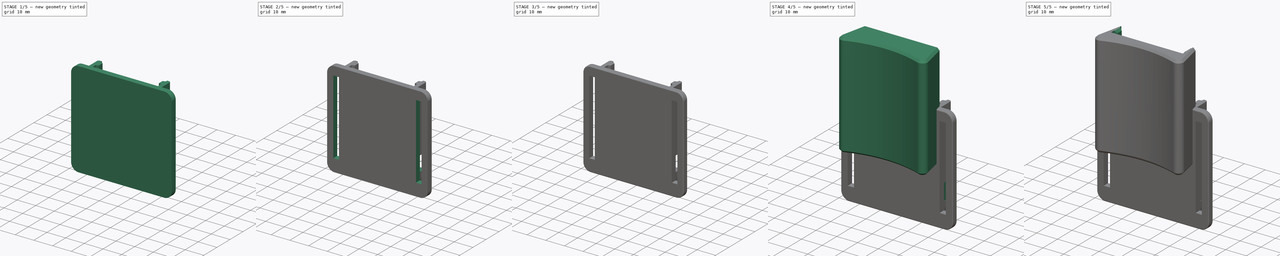
[diagram: build sequence overview — one tinted view per stage of 5, left to right]
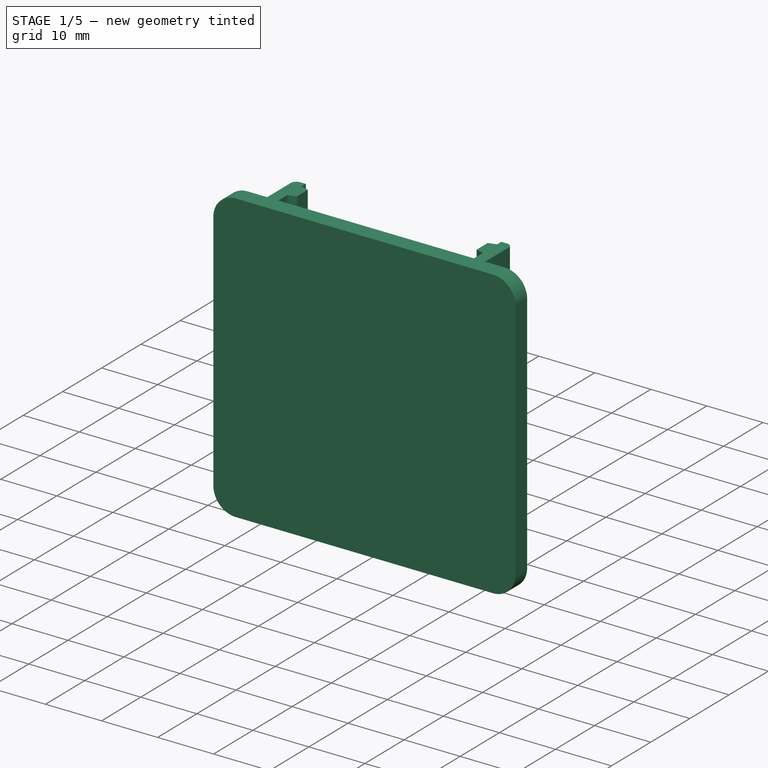
[diagram: stage 1 of 5 — iso view after this stage's code; geometry added in this stage tinted green]
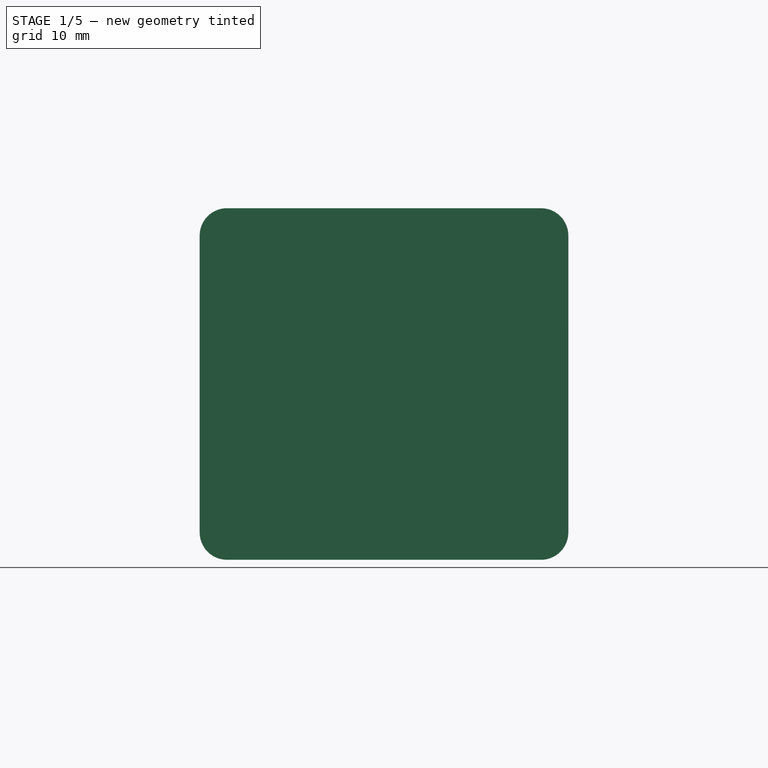
[diagram: stage 1 of 5 — front view after this stage's code; geometry added in this stage tinted green]
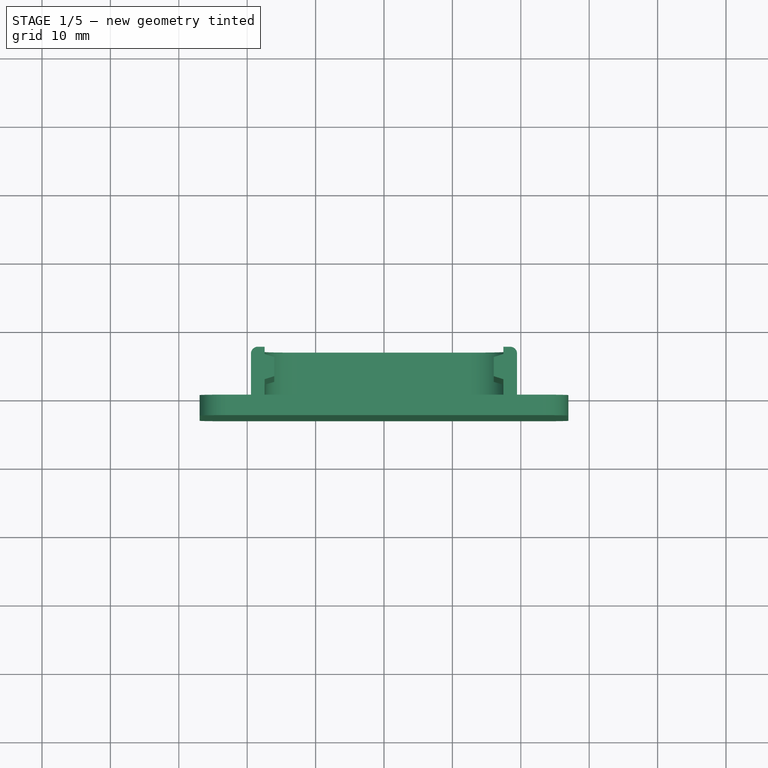
[diagram: stage 1 of 5 — top view after this stage's code; geometry added in this stage tinted green]
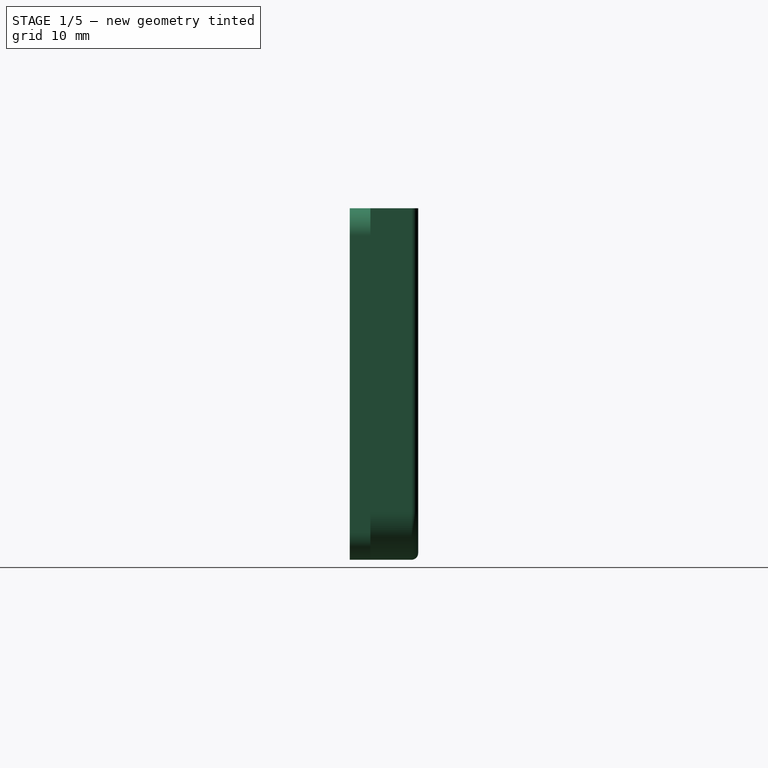
[diagram: stage 1 of 5 — right view after this stage's code; geometry added in this stage tinted green]
FCSTD DOCUMENT  (FreeCAD 1.0R39319 (Git))
Label: M1 Mounting
License: All rights reserved
objects: Sketcher::SketchObject×15, PartDesign::Pad×9, PartDesign::Fillet×7, PartDesign::Pocket×6, PartDesign::Chamfer×5, PartDesign::Mirrored×5, PartDesign::Body×3, PartDesign::Plane×1, App::Link×1, Spreadsheet::Sheet×1, PartDesign::SubShapeBinder×1
note: 126 computed .brp shape members not serialized (recipe doc carries the construction recipe); baked Part::Feature solids carry a one-line shape summary decoded from their .brp

FEATURE [PartDesign::Body] Body  label="Test Mount 1"
  AllowCompound = false
  Group = -> [Sketch,Pad,DatumPlane,Fillet,Chamfer,Sketch001,Pocket,Sketch002,Pad001,Chamfer001,Chamfer002,Fillet001,Mirrored]
  Origin = -> Origin
  Tip = -> Mirrored
FEATURE [App::Link] Link001  label="Housing Spreadsheet Binder"
  LinkedObject = -> Spreadsheet
FEATURE [Spreadsheet::Sheet] Spreadsheet  label="Housing Spreadsheet"
  cells = B1='Measurements; C1='Tolerance; D1='Output; G1='Measurements; H1='Tolerance; I1='Output; A2='Lower Housing Base; F2='Multi-Button; A3='PCB Length; B3==43 mm; C3==0 mm; D3(pcbLength)==B3 + C3; F3='Multi-Button Fillet; G3==1 mm; H3==0 mm; I3(multiButtonFillet)==G3 + H3; A4='PCB Width; B4==28.5 mm; C4==0 mm; D4(pcbWidth)==B4 + C4; F4='Multi-Button Length; G4==3 mm; H4==-0.25 mm; I4(multiButtonLength)==G4 + H4; A5='Base Offset; B5==3 mm; C5==0 mm; D5(baseGeoOffset)==B5 + C5; F5='Multi-Button Width; G5==10 mm; H5==-0.25 mm; I5(multiButtonWidth)==G5 + H5; A6='Base Geometry Pad Thickness; B6==20 mm; C6==0 mm; D6(baseGeoPadThickness)==B6 + C6; F6='Multi-Button Height; G6==4 mm; H6==-0.25 mm; I6(multiButtonHeight)==G6 + H6; A7='Board Pocket Offset; B7==0.3 mm; C7==0 mm; D7(boardPocketOffset)==B7 + C7; F7='Multi-Button Outer Chamfer; G7==0.25 mm; H7==0 mm; I7(multiButtonChamfer)==G7 + H7; A8='Board Pocket Depth; B8==10.5 mm; C8==0 mm; D8(boardPocketDepth)==B8 + C8; F8='Multi-Button Base Offset; G8==1.5 mm; H8==-0.25 mm; I8(multiButtonBaseOffset)==G8 + H8; A9='Board Pocket Screw Side Fillets; B9==2 mm; C9==0 mm; D9(boardPocketScrewSideFillets)==B9 + C9; F9='Multi-Button Base Length; G9==1.75 mm; H9==-0.25 mm; I9(multiButtonBaseLength)==G9 + H9; A10='Board Pocket Port Side Fillets; B10==2 mm; C10==0 mm; D10(boardPocketPortSideFillets)==B10 + C10; F10='Multi-Button Base Contact Fillet; G10==0.5 mm; H10==0 mm; I10(multiButtonBaseContactFillet)==G10 + H10; A11='Battery Pocket Length; B11==36 mm; C11==0 mm; D11(batteryPocketLength)==B11 + C11; A12='Battery Pocket Port Side Ledge; B12==2 mm; C12==0 mm; D12(batteryPocketLedge)==B12 + C12; A13='Battery Pocket Depth; B13==8 mm; C13==0 mm; D13(batteryPocketDepth)==B13 + C13; A14='Outer Corner Fillets; B14==5 mm; C14==0 mm; D14(baseGeoOuterCornerFillets)==B14 + C14; A16='Screw Square Length; B16==3 mm; C16==0 mm; D16(screwholeSquareLength)==B16 + C16; A17='Screw Hole Diameter; B17==1.6 mm; C17==0 mm; D17(screwholeDiameter)==B17 + C17; A18='Screw Hole Depth; B18==4 mm; C18==0 mm; D18(screwholeDepth)==B18 + C18; A19='Mounting; A20='Mounting Slot Offset; B20==2 mm; C20==0 mm; D20(mountingSlotOffset)==B20 + C20; A21='Mounting Slot Inner Width; B21==3 mm; C21==0 mm; D21(mountingSlotInnerWidth)==B21 + C21; A22='Mounting Slot Outer Width; B22==4 mm; C22==0 mm; D22(mountingSlotOuterWidth)==B22 + C22; A23='Mounting Slot Depth; B23==1.25 mm; C23==0 mm; D23(mountingSlotDepth)==B23 + C23; A24='Mounting Slot End Fillet; B24==1 mm; C24==0 mm; D24(mountingSlotEndFillet)==B24 + C24; A25='Mounting Slot Lock Width; B25==5 mm; C25==0 mm; D25(mountingSlotLockWidth)==B25 + C25; A26='Mounting Slot Lock Pitch; B26==20 mm; C26==0 mm; D26(mountingSlotLockPitch)==B26 + C26; A27='Mounting Slot Lock Depth; B27==0.5 mm; C27==0 mm; D27(mountingSlotLockDepth)==B27 + C27; A28='Mounting Slot Lock Taper Angle; B28=-25; C28=0; D28(mountingSlotLockTaperAngle)==B28 + C28; A29='Mounting Clip Offset; B29==13 mm; C29==0 mm; D29(mountingClipOffset)==B29 + C29; A30='Mounting Clip Width; B30==15 mm; C30==0 mm; D30(mountingClipWidth)==B30 + C30; A31='Mounting Clip Height; B31==5 mm; C31==0 mm; D31(mountingClipHeight)==B31 + C31; A32='Mounting Clip Depth; B32==1.5 mm; C32==0 mm; D32(mountingClipDepth)==B32 + C32
FEATURE [Sketcher::SketchObject] Sketch003  label="Base Reference Sketch"
  ArcFitTolerance = 1e-06
  AttachmentSupport = -> [XZ_Plane001]
  FullyConstrained = true
  MakeInternals = false
  MapMode = 5
  Placement = pos=(0,0,0) rot=(1,0,0;1.5708rad)
  expr: Constraints[10] = <<Housing Spreadsheet>>.pcbLength + 2 * <<Housing Spreadsheet>>.baseGeoOffset + 0.4 mm
  expr: Constraints[9] = <<Housing Spreadsheet>>.pcbWidth + 2 * <<Housing Spreadsheet>>.baseGeoOffset + 0.4 mm
  sketch-geometry (5):
    g0: LineSegment StartX=-17.45 StartY=-24.7 StartZ=0 EndX=17.45 EndY=-24.7 EndZ=0
    g1: LineSegment StartX=17.45 StartY=-24.7 StartZ=0 EndX=17.45 EndY=24.7 EndZ=0
    g2: LineSegment StartX=17.45 StartY=24.7 StartZ=0 EndX=-17.45 EndY=24.7 EndZ=0
    g3: LineSegment StartX=-17.45 StartY=24.7 StartZ=0 EndX=-17.45 EndY=-24.7 EndZ=0
    g4: GeomPoint [constr] X=0 Y=0 Z=0
  constraints (13):
    c: Coincident(g0,g1)
    c: Coincident(g1,g2)
    c: Coincident(g2,g3)
    c: Coincident(g3,g0)
    c: Horizontal(g0)
    c: Horizontal(g2)
    c: Vertical(g1)
    c: Vertical(g3)
    c: Symmetric(g2,g0,g4)
    c: DistanceX(g2,g2) = 34.9
    c: DistanceY(g1,g1) = 49.4
    c: PointOnObject(g4,g-2)
    c: PointOnObject(g4,g-1)
FEATURE [Sketcher::SketchObject] Sketch004  label="Offset Sketch"
  ArcFitTolerance = 1e-06
  AttachmentSupport = -> [XZ_Plane001]
  ExternalGeometry = -> [Sketch003]
  FullyConstrained = false
  MakeInternals = false
  MapMode = 5
  Placement = pos=(0,0,0) rot=(1,0,0;1.5708rad)
  expr: Constraints[17] = <<Housing Spreadsheet>>.baseGeoOuterCornerFillets
  sketch-geometry (20):
    g0: LineSegment StartX=-17.45 StartY=24.7 StartZ=0 EndX=-17.45 EndY=-19.7 EndZ=0
    g1: LineSegment StartX=-12.45 StartY=-24.7 StartZ=0 EndX=12.45 EndY=-24.7 EndZ=0
    g2: LineSegment StartX=17.45 StartY=-19.7 StartZ=0 EndX=17.45 EndY=24.7 EndZ=0
    g3: LineSegment [constr] StartX=17.45 StartY=24.7 StartZ=0 EndX=-17.45 EndY=24.7 EndZ=0
    g4: ArcOfCircle CenterX=-12.45 CenterY=-19.7 CenterZ=0 NormalX=0 NormalY=0 NormalZ=1 AngleXU=0 Radius=5 StartAngle=3.14159 EndAngle=4.71239
    g5: GeomPoint [constr] X=-17.45 Y=-24.7 Z=0
    g6: ArcOfCircle CenterX=12.45 CenterY=-19.7 CenterZ=0 NormalX=0 NormalY=0 NormalZ=1 AngleXU=0 Radius=5 StartAngle=4.71239 EndAngle=6.28319
    g7: GeomPoint [constr] X=17.45 Y=-24.7 Z=0
    g8: ArcOfCircle CenterX=12.45 CenterY=-19.7 CenterZ=0 NormalX=0 NormalY=0 NormalZ=1 AngleXU=0 Radius=7 StartAngle=4.71239 EndAngle=6.28319
    g9: LineSegment [constr] StartX=19.45 StartY=-19.7 StartZ=0 EndX=19.45 EndY=26.7 EndZ=0
    g10: LineSegment [constr] StartX=19.45 StartY=26.7 StartZ=0 EndX=-19.45 EndY=26.7 EndZ=0
    g11: LineSegment [constr] StartX=-19.45 StartY=26.7 StartZ=0 EndX=-19.45 EndY=-19.7 EndZ=0
    g12: ArcOfCircle CenterX=-12.45 CenterY=-19.7 CenterZ=0 NormalX=0 NormalY=0 NormalZ=1 AngleXU=0 Radius=7 StartAngle=3.14159 EndAngle=4.71239
    g13: LineSegment StartX=-12.45 StartY=-26.7 StartZ=0 EndX=12.45 EndY=-26.7 EndZ=0
    g14: LineSegment [constr] StartX=22.9053 StartY=26.7 StartZ=0 EndX=22.9053 EndY=24.7 EndZ=0
    g15: LineSegment [constr] StartX=-19.45 StartY=30.1554 StartZ=0 EndX=-17.45 EndY=30.1554 EndZ=0
    g16: LineSegment StartX=-17.45 StartY=24.7 StartZ=0 EndX=-19.45 EndY=24.7 EndZ=0
    g17: LineSegment StartX=17.45 StartY=24.7 StartZ=0 EndX=19.45 EndY=24.7 EndZ=0
    g18: LineSegment StartX=-19.45 StartY=24.7 StartZ=0 EndX=-19.45 EndY=-19.7 EndZ=0
    g19: LineSegment StartX=19.45 StartY=24.7 StartZ=0 EndX=19.45 EndY=-19.7 EndZ=0
  constraints (48):
    c: Coincident(g2,g3)
    c: Coincident(g3,g0)
    c: Vertical(g0)
    c: Vertical(g2)
    c: Horizontal(g1)
    c: Horizontal(g3)
    c: Coincident(g0,g-3)
    c: Coincident(g7,g-4)
    c: PointOnObject(g5,g0)
    c: PointOnObject(g5,g1)
    c: Tangent(g0,g4) = -1.5708
    c: Tangent(g1,g4) = -1.5708
    c: PointOnObject(g7,g1)
    c: PointOnObject(g7,g2)
    c: Tangent(g1,g6) = -1.5708
    c: Tangent(g2,g6) = -1.5708
    c: Equal(g6,g4)
    c: Radius(g4) = 5
    c: Tangent(g8,g9) = -1.5708
    c: Tangent(g8,g13) = -1.5708
    c: Coincident(g9,g10)
    c: Coincident(g10,g11)
    c: Tangent(g11,g12) = -1.5708
    c: Tangent(g12,g13) = -1.5708
    c: Perpendicular(g14,g10)
    c: PointOnObject(g14,g10)
    c: PointOnObject(g14,g3)
    c: Perpendicular(g15,g11)
    c: PointOnObject(g15,g11)
    c: PointOnObject(g15,g0)
    c: Parallel(g13,g1)
    c: Coincident(g8,g6)
    c: Parallel(g9,g2)
    c: Parallel(g10,g3)
    c: Parallel(g11,g0)
    c: Equal(g15,g14)
    c: Coincident(g12,g4)
    c: Distance(g14) = 2
    c: Coincident(g16,g0)
    c: PointOnObject(g16,g11)
    c: Horizontal(g16)
    c: Coincident(g17,g2)
    c: PointOnObject(g17,g9)
    c: Horizontal(g17)
    c: Coincident(g18,g16)
    c: Coincident(g18,g11)
    c: Coincident(g19,g17)
    c: Tangent(g19,g8) = 1.5708
FEATURE [PartDesign::Pad] Pad002  label="Mounting Walls"
  Direction = (0,-1,2e-16)
  Length = 7
  Length2 = 10
  Placement = pos=(0,0,0) rot=(1,0,0;1.5708rad)
  Profile = -> Sketch004
  ReferenceAxis = -> Sketch004 [N_Axis]
  Refine = true
  Reversed = true
  Suppressed = false
  Type = 0
FEATURE [Sketcher::SketchObject] Sketch005
  ArcFitTolerance = 1e-06
  AttachmentSupport = -> [XZ_Plane001]
  ExternalGeometry = -> [Sketch004]
  FullyConstrained = true
  MakeInternals = false
  MapMode = 5
  Placement = pos=(0,0,0) rot=(1,0,0;1.5708rad)
  sketch-geometry (5):
    g0: LineSegment StartX=-26.95 StartY=-26.7 StartZ=0 EndX=26.95 EndY=-26.7 EndZ=0
    g1: LineSegment StartX=26.95 StartY=-26.7 StartZ=0 EndX=26.95 EndY=24.7 EndZ=0
    g2: LineSegment StartX=26.95 StartY=24.7 StartZ=0 EndX=-26.95 EndY=24.7 EndZ=0
    g3: LineSegment StartX=-26.95 StartY=24.7 StartZ=0 EndX=-26.95 EndY=-26.7 EndZ=0
    g4: GeomPoint [constr] X=0 Y=-1 Z=0
  constraints (13):
    c: Coincident(g0,g1)
    c: Coincident(g1,g2)
    c: Coincident(g2,g3)
    c: Coincident(g3,g0)
    c: Horizontal(g0)
    c: Horizontal(g2)
    c: Vertical(g1)
    c: Vertical(g3)
    c: Symmetric(g2,g0,g4)
    c: PointOnObject(g4,g-2)
    c: PointOnObject(g-4,g2)
    c: PointOnObject(g-5,g0)
    c: Distance(g1,g-4) = 7.5
FEATURE [PartDesign::Pad] Pad003
  BaseFeature = -> Pad002
  Direction = (0,-1,2e-16)
  Length = 3
  Length2 = 10
  Placement = pos=(0,0,0) rot=(1,0,0;1.5708rad)
  Profile = -> Sketch005
  ReferenceAxis = -> Sketch005 [N_Axis]
  Refine = true
  Suppressed = false
  Type = 0
FEATURE [PartDesign::Fillet] Fillet002
  Base = -> Pad003 [Edge1,Edge2,Edge44,Edge45]
  BaseFeature = -> Pad003
  Placement = pos=(0,0,0) rot=(1,0,0;1.5708rad)
  Radius = 4
  Refine = true
  SupportTransform = false
  Suppressed = false
  UseAllEdges = false
FEATURE [Sketcher::SketchObject] Sketch006
  ArcFitTolerance = 1e-06
  AttachmentSupport = -> [Fillet002]
  ExternalGeometry = -> [Fillet002]
  FullyConstrained = true
  MakeInternals = false
  MapMode = 5
  Placement = pos=(0,1.15e-14,24.7) rot=(0,0,1;3.14159rad)
  expr: Constraints[11] = <<Housing Spreadsheet>>.mountingSlotOffset + 0.25 mm
  expr: Constraints[6] = <<Housing Spreadsheet>>.mountingSlotInnerWidth - 0.2 mm
  expr: Constraints[7] = <<Housing Spreadsheet>>.mountingSlotOuterWidth - 0.3 mm
  expr: Constraints[8] = <<Housing Spreadsheet>>.mountingSlotDepth + 0.15 mm
  sketch-geometry (4):
    g0: LineSegment StartX=-17.45 StartY=-2.25 StartZ=0 EndX=-17.45 EndY=-5.95 EndZ=0
    g1: LineSegment StartX=-17.45 StartY=-5.95 StartZ=0 EndX=-16.05 EndY=-5.5 EndZ=0
    g2: LineSegment StartX=-17.45 StartY=-2.25 StartZ=0 EndX=-16.05 EndY=-2.7 EndZ=0
    g3: LineSegment StartX=-16.05 StartY=-2.7 StartZ=0 EndX=-16.05 EndY=-5.5 EndZ=0
  constraints (12):
    c: Coincident(g1,g0)
    c: Coincident(g2,g0)
    c: Equal(g1,g2)
    c: Coincident(g3,g2)
    c: Vertical(g3)
    c: Coincident(g3,g1)
    c: DistanceY(g3,g3) = 2.8
    c: DistanceY(g0,g0) = 3.7
    c: Distance(g3,g0) = 1.4
    c: PointOnObject(g0,g-4)
    c: PointOnObject(g0,g-4)
    c: Distance(g0,g-3) = 2.25
FEATURE [PartDesign::Pad] Pad004  label="Mounting Rail"
  BaseFeature = -> Fillet002
  Direction = (0,0,1)
  Length = 10
  Length2 = 10
  Placement = pos=(0,0,0) rot=(1,0,0;1.5708rad)
  Profile = -> Sketch006
  ReferenceAxis = -> Sketch006 [N_Axis]
  Refine = true
  Reversed = true
  Suppressed = false
  Type = 2
FEATURE [PartDesign::Mirrored] Mirrored001  label="Mounting Rail Mirror001"
  BaseFeature = -> Pad004
  MirrorPlane = -> YZ_Plane001
  Originals = -> [Pad004]
  Placement = pos=(0,0,0) rot=(1,0,0;1.5708rad)
  Refine = true
  Suppressed = false
  TransformMode = 0
FEATURE [PartDesign::Fillet] Fillet003
  Base = -> Mirrored001 [Edge42]
  BaseFeature = -> Mirrored001
  Placement = pos=(0,0,0) rot=(1,0,0;1.5708rad)
  Radius = 1
  Refine = true
  SupportTransform = false
  Suppressed = false
  UseAllEdges = false
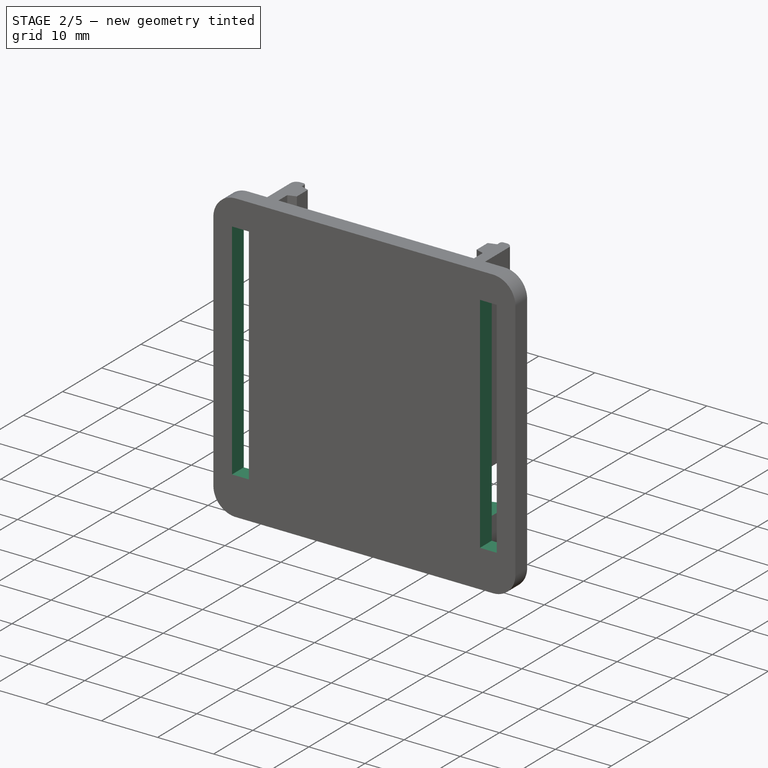
[diagram: stage 2 of 5 — iso view after this stage's code; geometry added in this stage tinted green]
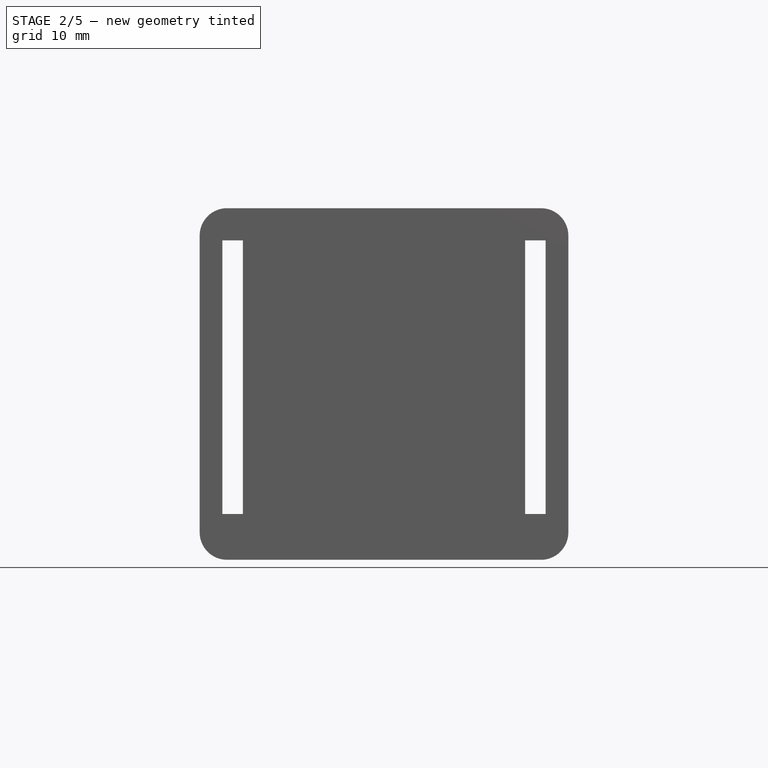
[diagram: stage 2 of 5 — front view after this stage's code; geometry added in this stage tinted green]
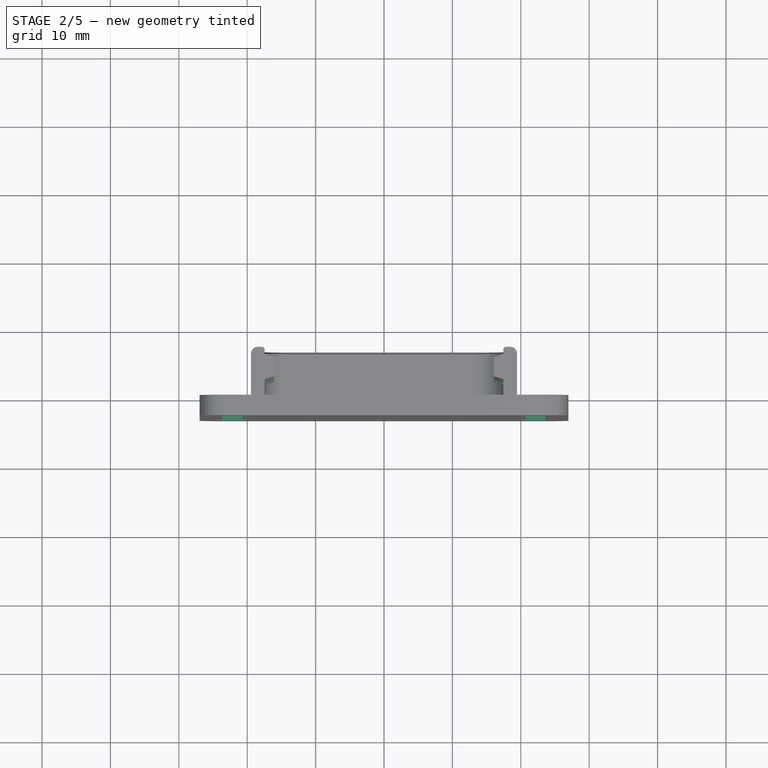
[diagram: stage 2 of 5 — top view after this stage's code; geometry added in this stage tinted green]
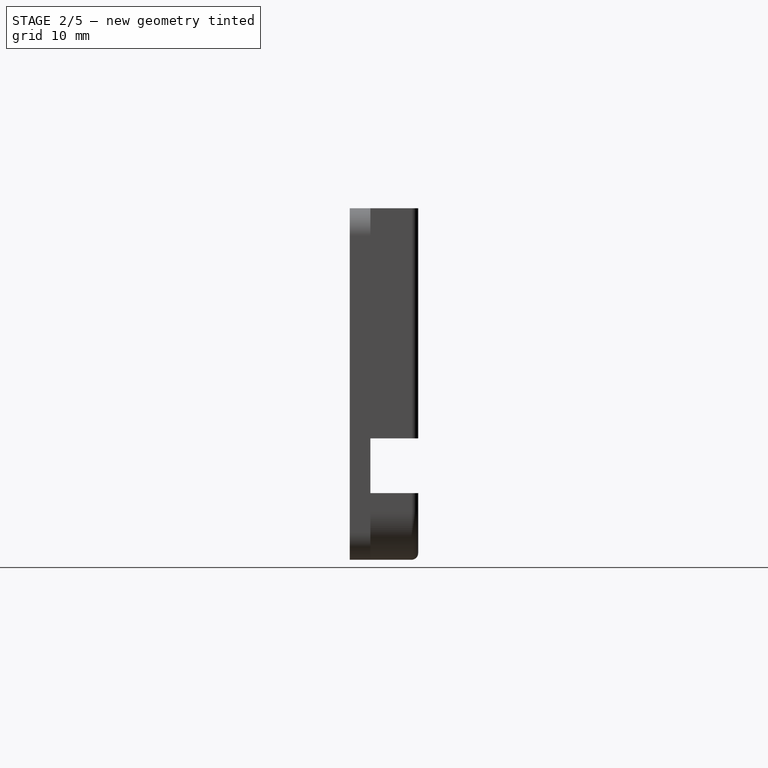
[diagram: stage 2 of 5 — right view after this stage's code; geometry added in this stage tinted green]
FEATURE [PartDesign::Chamfer] Chamfer003
  Angle = 45
  Base = -> Fillet003 [Edge45]
  BaseFeature = -> Fillet003
  ChamferType = 0
  FlipDirection = false
  Placement = pos=(0,0,0) rot=(1,0,0;1.5708rad)
  Refine = true
  Size = 0.25
  Size2 = 1
  SupportTransform = false
  Suppressed = false
  UseAllEdges = false
FEATURE [Sketcher::SketchObject] Sketch007
  ArcFitTolerance = 1e-06
  AttachmentSupport = -> [XZ_Plane001]
  FullyConstrained = true
  MakeInternals = false
  MapMode = 5
  Placement = pos=(0,0,0) rot=(1,0,0;1.5708rad)
  sketch-geometry (6):
    g0: LineSegment [constr] StartX=-24.625 StartY=-3e-16 StartZ=0 EndX=-19.625 EndY=-3e-16 EndZ=0
    g1: LineSegment StartX=-20.625 StartY=-20 StartZ=0 EndX=-20.625 EndY=20 EndZ=0
    g2: LineSegment StartX=-20.625 StartY=20 StartZ=0 EndX=-23.625 EndY=20 EndZ=0
    g3: LineSegment StartX=-23.625 StartY=20 StartZ=0 EndX=-23.625 EndY=-20 EndZ=0
    g4: LineSegment StartX=-23.625 StartY=-20 StartZ=0 EndX=-20.625 EndY=-20 EndZ=0
    g5: GeomPoint [constr] X=-22.125 Y=-3e-16 Z=0
  constraints (16):
    c: Symmetric(g-3,g-3,g0)
    c: PointOnObject(g0,g-4)
    c: Horizontal(g0)
    c: Coincident(g1,g2)
    c: Coincident(g2,g3)
    c: Coincident(g3,g4)
    c: Coincident(g4,g1)
    c: Vertical(g1)
    c: Vertical(g3)
    c: Horizontal(g2)
    c: Horizontal(g4)
    c: Symmetric(g3,g1,g5)
    c: Distance(g2,g2) = 3
    c: DistanceY(g3,g3) = 40
    c: PointOnObject(g5,g0)
    c: Distance(g-4,g1) = 1
FEATURE [PartDesign::Pocket] Pocket001  label="Strap Pocket"
  BaseFeature = -> Chamfer003
  Direction = (0,1,-2e-16)
  Length = 5
  Length2 = 5
  Placement = pos=(0,0,0) rot=(1,0,0;1.5708rad)
  Profile = -> Sketch007
  ReferenceAxis = -> Sketch007 [N_Axis]
  Refine = true
  Reversed = true
  Suppressed = false
  Type = 1
FEATURE [PartDesign::Mirrored] Mirrored002  label="Strap Pocket Mirror"
  BaseFeature = -> Pocket001
  MirrorPlane = -> YZ_Plane001
  Originals = -> [Pocket001]
  Placement = pos=(0,0,0) rot=(1,0,0;1.5708rad)
  Refine = true
  Suppressed = false
  TransformMode = 0
FEATURE [Sketcher::SketchObject] Sketch008
  ArcFitTolerance = 1e-06
  AttachmentSupport = -> [XZ_Plane001]
  ExternalGeometry = -> [Sketch004]
  FullyConstrained = true
  MakeInternals = false
  MapMode = 5
  Placement = pos=(0,0,0) rot=(1,0,0;1.5708rad)
  sketch-geometry (4):
    g0: LineSegment StartX=19.45 StartY=-8.95 StartZ=0 EndX=-19.45 EndY=-8.95 EndZ=0
    g1: LineSegment StartX=-19.45 StartY=-8.95 StartZ=0 EndX=-19.45 EndY=-16.95 EndZ=0
    g2: LineSegment StartX=-19.45 StartY=-16.95 StartZ=0 EndX=19.45 EndY=-16.95 EndZ=0
    g3: LineSegment StartX=19.45 StartY=-16.95 StartZ=0 EndX=19.45 EndY=-8.95 EndZ=0
  constraints (12):
    c: Coincident(g0,g1)
    c: Coincident(g1,g2)
    c: Coincident(g2,g3)
    c: Coincident(g3,g0)
    c: Horizontal(g0)
    c: Horizontal(g2)
    c: Vertical(g1)
    c: Vertical(g3)
    c: Distance(g0,g2) = 8
    c: PointOnObject(g0,g-3)
    c: PointOnObject(g0,g-4)
    c: Distance(g2,g-4) = 2.75
FEATURE [PartDesign::Pocket] Pocket002  label="Locking Tab Pocket "
  BaseFeature = -> Mirrored002
  Direction = (0,1,-2e-16)
  Length = 5
  Length2 = 5
  Placement = pos=(0,0,0) rot=(1,0,0;1.5708rad)
  Profile = -> Sketch008
  ReferenceAxis = -> Sketch008 [N_Axis]
  Refine = true
  Suppressed = false
  Type = 1
FEATURE [Sketcher::SketchObject] Sketch009
  ArcFitTolerance = 1e-06
  AttachmentSupport = -> [XZ_Plane001]
  ExternalGeometry = -> [Sketch008,Sketch004]
  FullyConstrained = true
  MakeInternals = false
  MapMode = 5
  Placement = pos=(0,0,0) rot=(1,0,0;1.5708rad)
  sketch-geometry (4):
    g0: LineSegment StartX=19.45 StartY=-8.95 StartZ=0 EndX=17.45 EndY=-8.95 EndZ=0
    g1: LineSegment StartX=17.45 StartY=-8.95 StartZ=0 EndX=17.45 EndY=-16.95 EndZ=0
    g2: LineSegment StartX=17.45 StartY=-16.95 StartZ=0 EndX=19.45 EndY=-16.95 EndZ=0
    g3: LineSegment StartX=19.45 StartY=-16.95 StartZ=0 EndX=19.45 EndY=-8.95 EndZ=0
  constraints (11):
    c: Coincident(g0,g1)
    c: Coincident(g1,g2)
    c: Coincident(g2,g3)
    c: Coincident(g3,g0)
    c: Horizontal(g0)
    c: Horizontal(g2)
    c: Vertical(g1)
    c: Vertical(g3)
    c: Coincident(g0,g-3)
    c: PointOnObject(g1,g-4)
    c: PointOnObject(g0,g-5)
FEATURE [PartDesign::Pocket] Pocket004
  BaseFeature = -> Pocket002
  Direction = (0,1,-2e-16)
  Length = 2.5
  Length2 = 5
  Placement = pos=(0,0,0) rot=(1,0,0;1.5708rad)
  Profile = -> Sketch008
  ReferenceAxis = -> Sketch008 [N_Axis]
  Refine = true
  Reversed = true
  Suppressed = false
  Type = 0
FEATURE [PartDesign::Pocket] Pocket003  label="Locking Tab Base Pocket"
  BaseFeature = -> Pocket004
  Direction = (0,1,-2e-16)
  Length = 2.5
  Length2 = 5
  Placement = pos=(0,0,0) rot=(1,0,0;1.5708rad)
  Profile = -> Sketch009
  ReferenceAxis = -> Sketch009 [N_Axis]
  Refine = true
  Reversed = true
  Suppressed = true
  Type = 0
FEATURE [PartDesign::Mirrored] Mirrored003  label="Locking Tab Base Mirror"
  BaseFeature = -> Pocket003
  MirrorPlane = -> YZ_Plane001
  Originals = -> [Pocket003]
  Placement = pos=(0,0,0) rot=(1,0,0;1.5708rad)
  Refine = true
  Suppressed = true
  TransformMode = 0
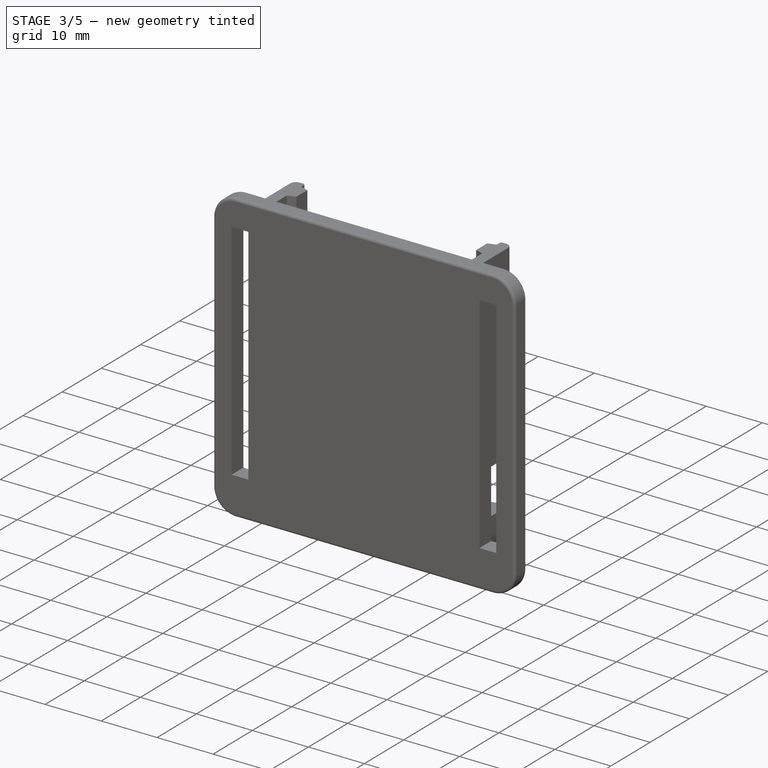
[diagram: stage 3 of 5 — iso view after this stage's code; geometry added in this stage tinted green]
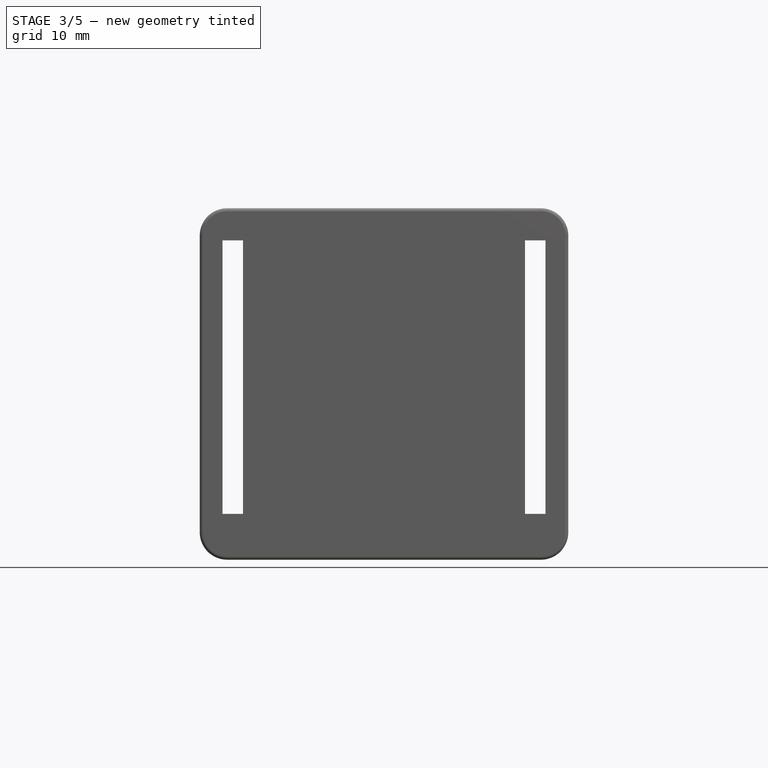
[diagram: stage 3 of 5 — front view after this stage's code; geometry added in this stage tinted green]
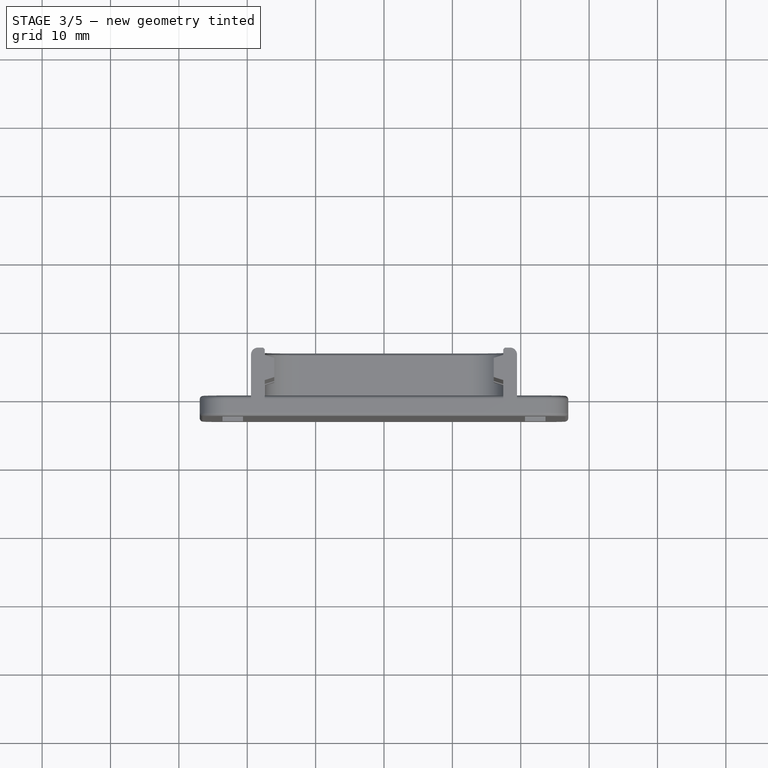
[diagram: stage 3 of 5 — top view after this stage's code; geometry added in this stage tinted green]
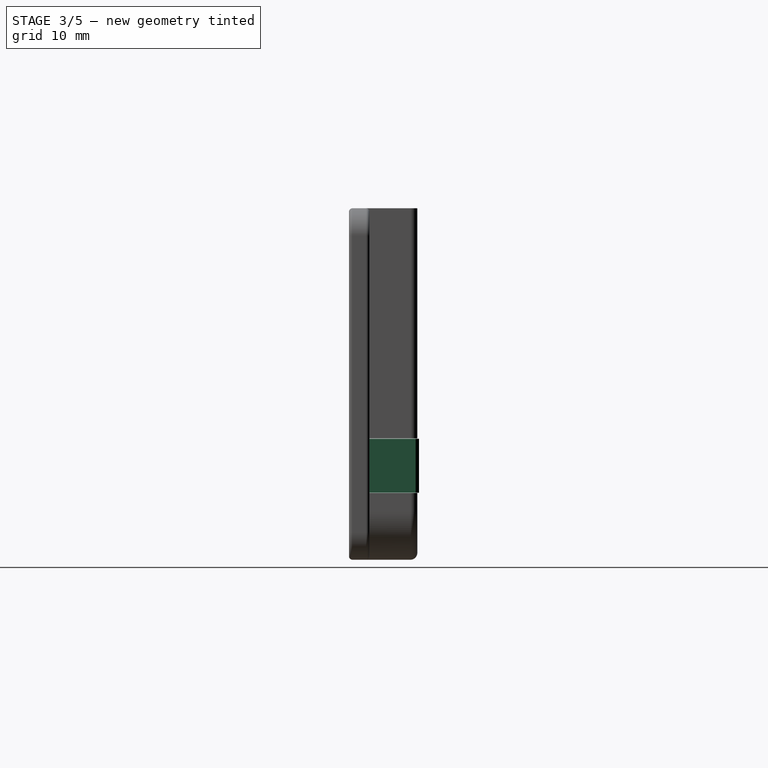
[diagram: stage 3 of 5 — right view after this stage's code; geometry added in this stage tinted green]
FEATURE [PartDesign::SubShapeBinder] Binder
  BindCopyOnChange = 0
  BindMode = 0
  ClaimChildren = false
  Context = -> Body002 [Binder.]
  Fuse = false
  MakeFace = true
  OffsetFill = false
  OffsetIntersection = false
  OffsetJoinType = 0
  OffsetOpenResult = false
  PartialLoad = false
  Refine = true
  Relative = true
  Support = -> [Body001]
  _Version = 2
FEATURE [Sketcher::SketchObject] Sketch010
  ArcFitTolerance = 1e-06
  AttachmentSupport = -> [XZ_Plane002]
  FullyConstrained = false
  MakeInternals = false
  MapMode = 5
  Placement = pos=(0,0,0) rot=(1,0,0;1.5708rad)
  sketch-geometry (12):
    g0: LineSegment [constr] StartX=18.1238 StartY=-8.95 StartZ=0 EndX=-19.45 EndY=-8.95 EndZ=0
    g1: LineSegment [constr] StartX=-19.45 StartY=-8.95 StartZ=0 EndX=-19.45 EndY=-16.95 EndZ=0
    g2: LineSegment [constr] StartX=-19.45 StartY=-16.95 StartZ=0 EndX=18.1238 EndY=-16.95 EndZ=0
    g3: LineSegment [constr] StartX=18.1238 StartY=-16.95 StartZ=0 EndX=18.1238 EndY=-8.95 EndZ=0
    g4: LineSegment StartX=18.0738 StartY=-16.9 StartZ=0 EndX=18.0738 EndY=-9 EndZ=0
    g5: LineSegment StartX=18.0738 StartY=-9 StartZ=0 EndX=-19.4 EndY=-9 EndZ=0
    g6: LineSegment StartX=-19.4 StartY=-9 StartZ=0 EndX=-19.4 EndY=-16.9 EndZ=0
    g7: LineSegment StartX=-19.4 StartY=-16.9 StartZ=0 EndX=18.0738 EndY=-16.9 EndZ=0
    g8: LineSegment [constr] StartX=18.0738 StartY=-15.547 StartZ=0 EndX=18.1238 EndY=-15.547 EndZ=0
    g9: LineSegment [constr] StartX=18.0468 StartY=-9 StartZ=0 EndX=18.0468 EndY=-8.95 EndZ=0
    g10: LineSegment [constr] StartX=-19.4 StartY=-10.3536 StartZ=0 EndX=-19.45 EndY=-10.3536 EndZ=0
    g11: LineSegment [constr] StartX=-18.0468 StartY=-16.9 StartZ=0 EndX=-18.0468 EndY=-16.95 EndZ=0
  constraints (34):
    c: Coincident(g0,g1)
    c: Coincident(g1,g2)
    c: Coincident(g2,g3)
    c: Coincident(g3,g0)
    c: Horizontal(g0)
    c: Horizontal(g2)
    c: Vertical(g1)
    c: Vertical(g3)
    c: Coincident(g1,g-5)
    c: PointOnObject(g0,g-3)
    c: Coincident(g4,g5)
    c: Coincident(g4,g7)
    c: Coincident(g5,g6)
    c: Coincident(g6,g7)
    c: Perpendicular(g8,g4)
    c: PointOnObject(g8,g4)
    c: PointOnObject(g8,g3)
    c: Perpendicular(g9,g5)
    c: PointOnObject(g9,g5)
    c: PointOnObject(g9,g0)
    c: Perpendicular(g10,g6)
    c: PointOnObject(g10,g6)
    c: PointOnObject(g10,g1)
    c: Perpendicular(g11,g7)
    c: PointOnObject(g11,g7)
    c: PointOnObject(g11,g2)
    c: Parallel(g7,g2)
    c: Parallel(g4,g3)
    c: Parallel(g5,g0)
    c: Equal(g9,g8)
    c: Parallel(g6,g1)
    c: Equal(g10,g8)
    c: Equal(g11,g8)
    c: Distance(g8) = 0.05
FEATURE [PartDesign::Pad] Pad005
  Direction = (0,-1,2e-16)
  Length = 2.25
  Length2 = 10
  Placement = pos=(0,0,0) rot=(1,0,0;1.5708rad)
  Profile = -> Sketch010
  ReferenceAxis = -> Sketch010 [N_Axis]
  Refine = true
  Suppressed = false
  Type = 0
FEATURE [Sketcher::SketchObject] Sketch011
  ArcFitTolerance = 1e-06
  AttachmentSupport = -> [XZ_Plane002]
  ExternalGeometry = -> [Pad005]
  FullyConstrained = true
  MakeInternals = false
  MapMode = 5
  Placement = pos=(0,0,0) rot=(1,0,0;1.5708rad)
  sketch-geometry (4):
    g0: LineSegment StartX=-19.4 StartY=-9 StartZ=0 EndX=-19.4 EndY=-16.9 EndZ=0
    g1: LineSegment StartX=-19.4 StartY=-16.9 StartZ=0 EndX=-17.4 EndY=-16.9 EndZ=0
    g2: LineSegment StartX=-17.4 StartY=-16.9 StartZ=0 EndX=-17.4 EndY=-9 EndZ=0
    g3: LineSegment StartX=-17.4 StartY=-9 StartZ=0 EndX=-19.4 EndY=-9 EndZ=0
  constraints (11):
    c: Coincident(g0,g1)
    c: Coincident(g1,g2)
    c: Coincident(g2,g3)
    c: Coincident(g3,g0)
    c: Vertical(g0)
    c: Vertical(g2)
    c: Horizontal(g1)
    c: Horizontal(g3)
    c: Coincident(g0,g-4)
    c: PointOnObject(g1,g-3)
    c: DistanceX(g3,g3) = 2
FEATURE [PartDesign::Pad] Pad006
  BaseFeature = -> Pad005
  Direction = (0,-1,2e-16)
  Length = 7.25
  Length2 = 10
  Placement = pos=(0,0,0) rot=(1,0,0;1.5708rad)
  Profile = -> Sketch011
  ReferenceAxis = -> Sketch011 [N_Axis]
  Refine = true
  Reversed = true
  Suppressed = false
  Type = 0
FEATURE [PartDesign::Fillet] Fillet004
  Base = -> Pad006 [Edge14]
  BaseFeature = -> Pad006
  Placement = pos=(0,0,0) rot=(1,0,0;1.5708rad)
  Radius = 1
  Refine = true
  SupportTransform = false
  Suppressed = false
  UseAllEdges = false
FEATURE [PartDesign::Chamfer] Chamfer004
  Angle = 45
  Base = -> Fillet004 [Edge3]
  BaseFeature = -> Fillet004
  ChamferType = 0
  FlipDirection = false
  Placement = pos=(0,0,0) rot=(1,0,0;1.5708rad)
  Refine = true
  Size = 0.5
  Size2 = 1
  SupportTransform = false
  Suppressed = false
  UseAllEdges = false
FEATURE [PartDesign::Body] Body002  label="Locking Tab"
  AllowCompound = false
  Group = -> [Binder,Sketch010,Pad005,Sketch011,Pad006,Fillet004,Chamfer004,Sketch012,Pad007,Sketch013,Pad008,Sketch014,Pocket005,Mirrored004]
  Origin = -> Origin002
  Tip = -> Mirrored004
FEATURE [PartDesign::Fillet] Fillet005  label="Bottom Fillets"
  Base = -> Mirrored003 [Edge128]
  BaseFeature = -> Mirrored003
  Placement = pos=(0,0,0) rot=(1,0,0;1.5708rad)
  Radius = 0.5
  Refine = true
  SupportTransform = false
  Suppressed = false
  UseAllEdges = false
FEATURE [PartDesign::Fillet] Fillet006
  Base = -> Fillet005 [Edge34,Edge18,Edge92]
  BaseFeature = -> Fillet005
  Placement = pos=(0,0,0) rot=(1,0,0;1.5708rad)
  Radius = 0.5
  Refine = true
  SupportTransform = false
  Suppressed = false
  UseAllEdges = false
FEATURE [PartDesign::Body] Body001  label="Mount 1"
  AllowCompound = false
  Group = -> [Sketch003,Sketch004,Pad002,Sketch005,Pad003,Fillet002,Sketch006,Pad004,Mirrored001,Fillet003,Chamfer003,Sketch007,Pocket001,Mirrored002,Sketch008,Pocket002,Sketch009,Pocket004,Pocket003,Mirrored003,Fillet005,Fillet006]
  Origin = -> Origin001
  Tip = -> Fillet006
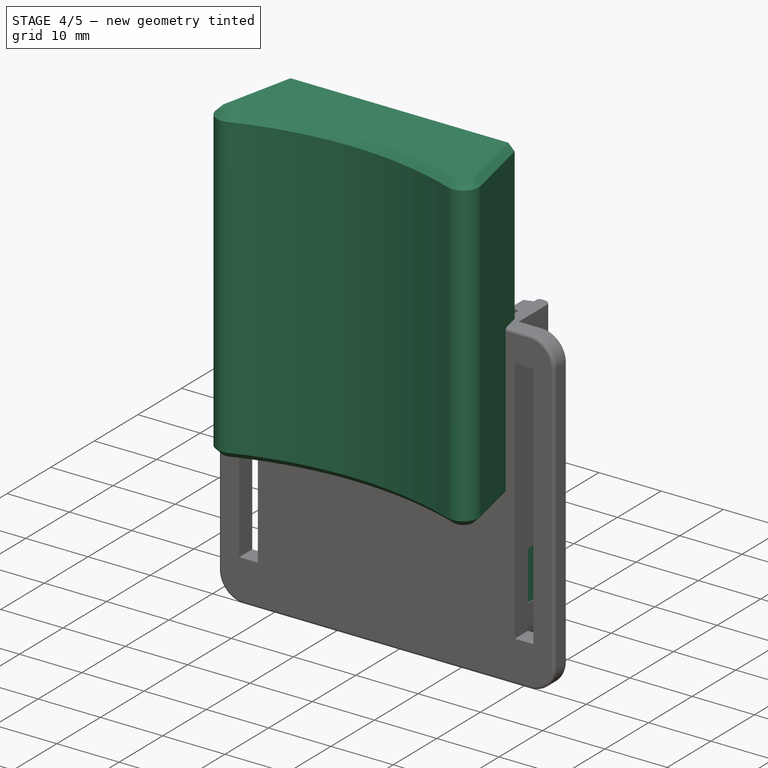
[diagram: stage 4 of 5 — iso view after this stage's code; geometry added in this stage tinted green]
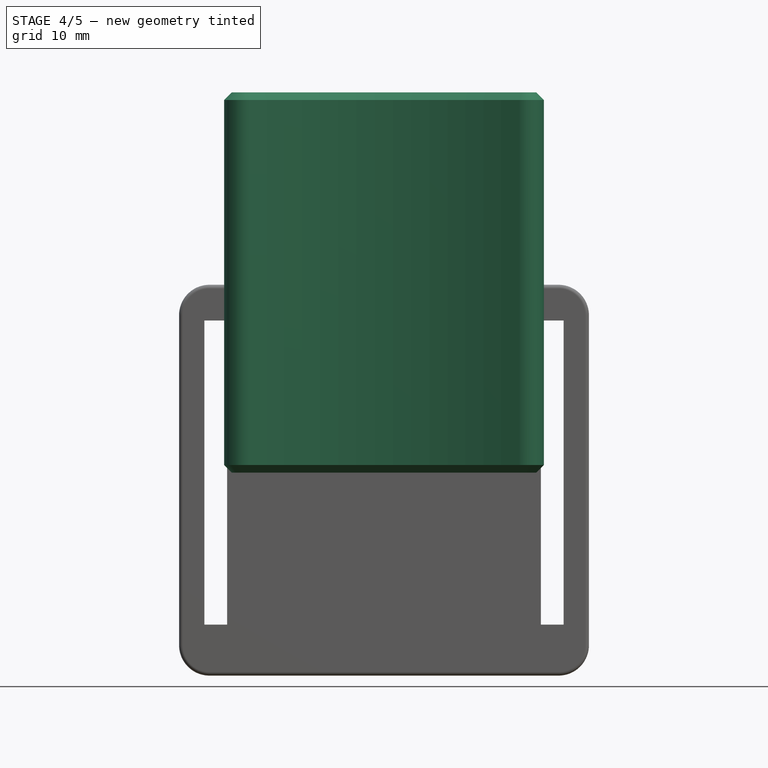
[diagram: stage 4 of 5 — front view after this stage's code; geometry added in this stage tinted green]
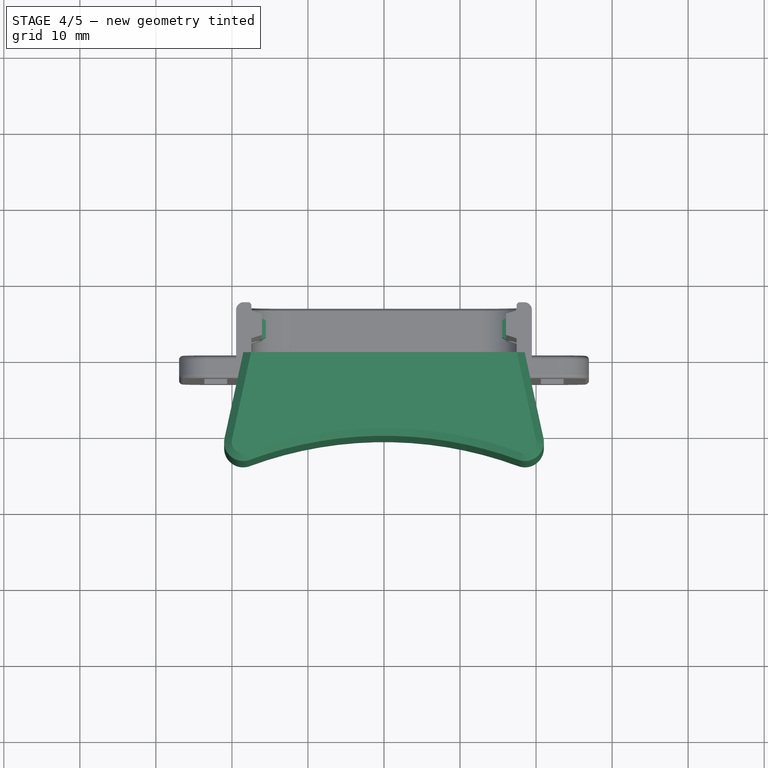
[diagram: stage 4 of 5 — top view after this stage's code; geometry added in this stage tinted green]
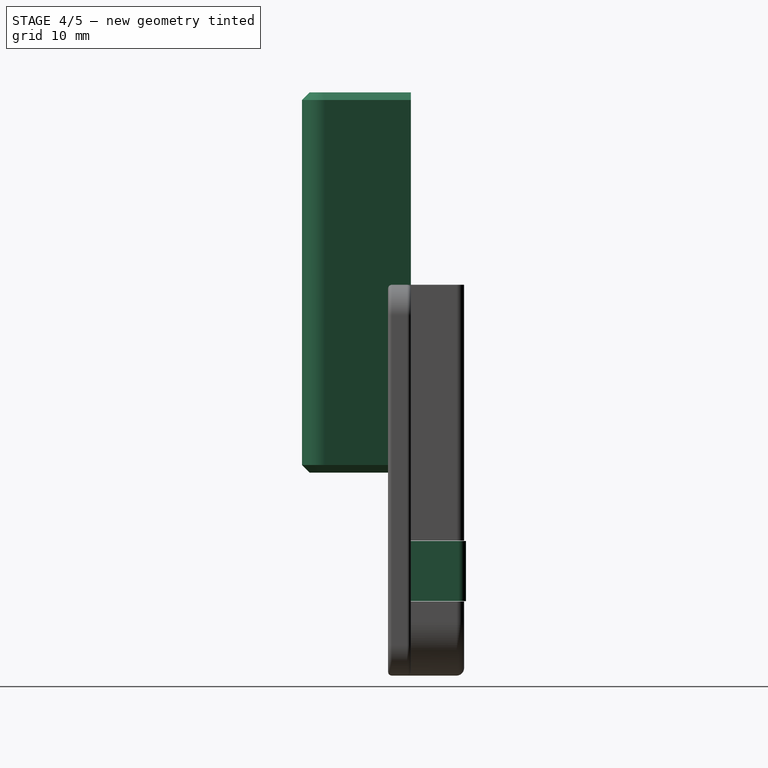
[diagram: stage 4 of 5 — right view after this stage's code; geometry added in this stage tinted green]
FEATURE [Sketcher::SketchObject] Sketch
  ArcFitTolerance = 1e-06
  AttachmentSupport = -> [XY_Plane]
  FullyConstrained = true
  MakeInternals = false
  MapMode = 5
  sketch-geometry (10):
    g0: LineSegment [constr] StartX=-7e-16 StartY=-1.8e-15 StartZ=0 EndX=0 EndY=-11 EndZ=0
    g1: LineSegment [constr] StartX=-7e-16 StartY=-1.8e-15 StartZ=0 EndX=-18.5 EndY=0 EndZ=0
    g2: LineSegment [constr] StartX=-7e-16 StartY=-1.8e-15 StartZ=0 EndX=18.5 EndY=0 EndZ=0
    g3: LineSegment StartX=-18.5 StartY=0 StartZ=0 EndX=-22 EndY=-16 EndZ=0
    g4: LineSegment StartX=18.5 StartY=0 StartZ=0 EndX=22 EndY=-16 EndZ=0
    g5: ArcOfCircle CenterX=-1.3e-15 CenterY=-61.9 CenterZ=0 NormalX=0 NormalY=0 NormalZ=1 AngleXU=0 Radius=50.9 StartAngle=1.12384 EndAngle=2.01775
    g6: LineSegment [constr] StartX=-22 StartY=-16 StartZ=0 EndX=-7e-16 EndY=-1.8e-15 EndZ=0
    g7: LineSegment [constr] StartX=22 StartY=-16 StartZ=0 EndX=1.1e-15 EndY=-1.5e-15 EndZ=0
    g8: LineSegment StartX=-18.5 StartY=0 StartZ=0 EndX=18.5 EndY=0 EndZ=0
    g9: LineSegment [constr] StartX=-22 StartY=-16 StartZ=0 EndX=22 EndY=-16 EndZ=0
  constraints (26):
    c: Coincident(g0,g-1)
    c: PointOnObject(g0,g-2)
    c: Coincident(g1,g0)
    c: PointOnObject(g1,g-1)
    c: Coincident(g2,g0)
    c: PointOnObject(g2,g-1)
    c: Coincident(g3,g1)
    c: Coincident(g4,g2)
    c: Equal(g1,g2)
    c: Equal(g4,g3)
    c: Coincident(g5,g3)
    c: Coincident(g5,g4)
    c: PointOnObject(g0,g5)
    c: Coincident(g6,g3)
    c: Coincident(g6,g0)
    c: Coincident(g7,g4)
    c: Coincident(g7,g0)
    c: Equal(g7,g6)
    c: Distance(g4,g2) = 16
    c: DistanceX(g3,g4) = 44
    c: DistanceX(g1,g2) = 37
    c: Coincident(g8,g1)
    c: Coincident(g8,g2)
    c: Coincident(g9,g3)
    c: Coincident(g9,g4)
    c: Distance(g0,g9) = 5
FEATURE [PartDesign::Pad] Pad  label="Base Geometry"
  Direction = (0,0,1)
  Length = 50
  Length2 = 10
  Profile = -> Sketch
  ReferenceAxis = -> Sketch [N_Axis]
  Refine = true
  Suppressed = false
  Type = 0
FEATURE [PartDesign::Fillet] Fillet
  Base = -> Pad [Edge2,Edge5]
  BaseFeature = -> Pad
  Radius = 2.5
  Refine = true
  SupportTransform = false
  Suppressed = false
  UseAllEdges = false
FEATURE [PartDesign::Chamfer] Chamfer
  Angle = 45
  Base = -> Fillet [Edge14,Edge7]
  BaseFeature = -> Fillet
  ChamferType = 0
  FlipDirection = false
  Refine = true
  Size = 1
  Size2 = 1
  SupportTransform = false
  Suppressed = false
  UseAllEdges = false
FEATURE [Sketcher::SketchObject] Sketch012
  ArcFitTolerance = 1e-06
  AttachmentSupport = -> [Chamfer004]
  ExternalGeometry = -> [Chamfer004]
  FullyConstrained = false
  MakeInternals = false
  MapMode = 5
  Placement = pos=(0,-4.7e-15,-9) rot=(0,0,1;3.14159rad)
  sketch-geometry (4):
    g0: LineSegment StartX=17.4 StartY=-2.50051 StartZ=0 EndX=17.4 EndY=-5.69949 EndZ=0
    g1: LineSegment StartX=17.4 StartY=-2.50051 StartZ=0 EndX=16.05 EndY=-2.7 EndZ=0
    g2: LineSegment StartX=17.4 StartY=-5.69949 StartZ=0 EndX=16.05 EndY=-5.5 EndZ=0
    g3: LineSegment StartX=16.05 StartY=-5.5 StartZ=0 EndX=16.05 EndY=-2.7 EndZ=0
  constraints (10):
    c: PointOnObject(g0,g-3)
    c: PointOnObject(g0,g-3)
    c: Coincident(g1,g0)
    c: Coincident(g2,g0)
    c: Equal(g2,g1)
    c: Coincident(g3,g2)
    c: Vertical(g3)
    c: Coincident(g1,g3)
    c: Equal(g-4,g3)
    c: Coincident(g-4,g2)
FEATURE [PartDesign::Pad] Pad007
  BaseFeature = -> Chamfer004
  Direction = (0,0,1)
  Length = 10
  Length2 = 10
  Placement = pos=(0,0,0) rot=(1,0,0;1.5708rad)
  Profile = -> Sketch012
  ReferenceAxis = -> Sketch012 [N_Axis]
  Refine = true
  Reversed = true
  Suppressed = false
  Type = 3
  UpToFace = -> Chamfer004 [Face2]
FEATURE [Sketcher::SketchObject] Sketch013
  ArcFitTolerance = 1e-06
  AttachmentSupport = -> [Pad007]
  ExternalGeometry = -> [Pad007]
  FullyConstrained = true
  MakeInternals = false
  MapMode = 5
  Placement = pos=(-16.05,0,0) rot=(0.707107,0,0.707107;3.14159rad)
  sketch-geometry (6):
    g0: LineSegment [constr] StartX=-12.95 StartY=-2.7 StartZ=0 EndX=-12.95 EndY=-5.5 EndZ=0
    g1: LineSegment StartX=-15.45 StartY=-5.5 StartZ=0 EndX=-10.45 EndY=-5.5 EndZ=0
    g2: LineSegment StartX=-10.45 StartY=-5.5 StartZ=0 EndX=-10.45 EndY=-2.7 EndZ=0
    g3: LineSegment StartX=-10.45 StartY=-2.7 StartZ=0 EndX=-15.45 EndY=-2.7 EndZ=0
    g4: LineSegment StartX=-15.45 StartY=-2.7 StartZ=0 EndX=-15.45 EndY=-5.5 EndZ=0
    g5: GeomPoint [constr] X=-12.95 Y=-4.1 Z=0
  constraints (14):
    c: Symmetric(g-3,g-3,g0)
    c: Symmetric(g-4,g-4,g0)
    c: Coincident(g1,g2)
    c: Coincident(g2,g3)
    c: Coincident(g3,g4)
    c: Coincident(g4,g1)
    c: Horizontal(g1)
    c: Horizontal(g3)
    c: Vertical(g2)
    c: Vertical(g4)
    c: Symmetric(g3,g1,g5)
    c: Symmetric(g0,g0,g5)
    c: PointOnObject(g2,g-3)
    c: Distance(g3,g3) = 5
FEATURE [PartDesign::Pad] Pad008
  BaseFeature = -> Pad007
  Direction = (1,0,-2e-16)
  Length = 0.5
  Length2 = 10
  Placement = pos=(0,0,0) rot=(1,0,0;1.5708rad)
  Profile = -> Sketch013
  ReferenceAxis = -> Sketch013 [N_Axis]
  Refine = true
  Suppressed = false
  TaperAngle = -30
  Type = 0
FEATURE [Sketcher::SketchObject] Sketch014
  ArcFitTolerance = 1e-06
  AttachmentSupport = -> [XY_Plane002]
  ExternalGeometry = -> [Pad008]
  FullyConstrained = false
  MakeInternals = false
  MapMode = 5
  sketch-geometry (4):
    g0: LineSegment StartX=-17.4 StartY=2.50051 StartZ=0 EndX=-18.2 EndY=2.04793 EndZ=0
    g1: LineSegment StartX=-17.4 StartY=-2.2e-15 StartZ=0 EndX=-18.2 EndY=0.452588 EndZ=0
    g2: LineSegment StartX=-18.2 StartY=2.04793 StartZ=0 EndX=-18.2 EndY=0.452588 EndZ=0
    g3: LineSegment StartX=-17.4 StartY=2.50051 StartZ=0 EndX=-17.4 EndY=-2.2e-15 EndZ=0
  constraints (9):
    c: Coincident(g0,g-3)
    c: Coincident(g1,g-3)
    c: Coincident(g2,g0)
    c: Vertical(g2)
    c: Coincident(g2,g1)
    c: Equal(g1,g0)
    c: Distance(g2,g-4) = 1.2
    c: Coincident(g3,g0)
    c: Coincident(g3,g1)
FEATURE [PartDesign::Pocket] Pocket005
  BaseFeature = -> Pad008
  Direction = (0,0,-1)
  Length = 5
  Length2 = 5
  Placement = pos=(0,0,0) rot=(1,0,0;1.5708rad)
  Profile = -> Sketch014
  ReferenceAxis = -> Sketch014 [N_Axis]
  Refine = true
  Suppressed = false
  Type = 1
FEATURE [PartDesign::Mirrored] Mirrored004
  BaseFeature = -> Pocket005
  MirrorPlane = -> YZ_Plane002
  Originals = -> [Pad007,Pad006]
  Placement = pos=(0,0,0) rot=(1,0,0;1.5708rad)
  Refine = true
  Suppressed = false
  TransformMode = 1
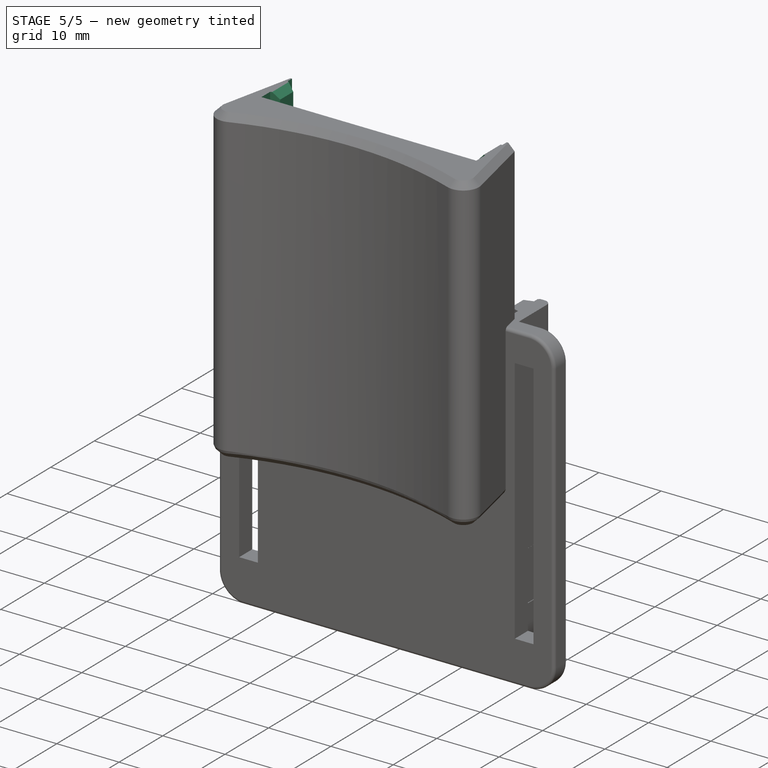
[diagram: stage 5 of 5 — iso view after this stage's code; geometry added in this stage tinted green]
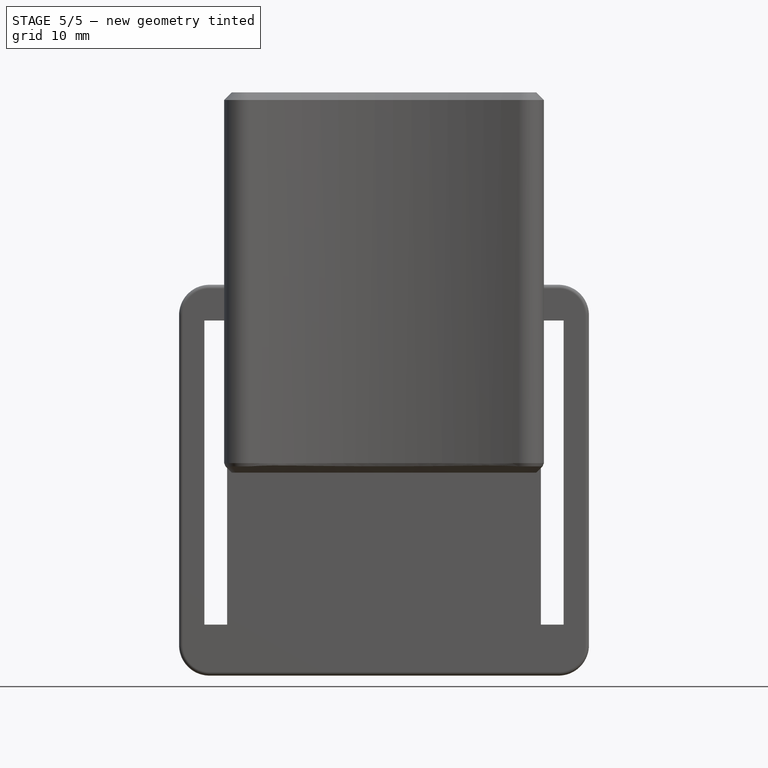
[diagram: stage 5 of 5 — front view after this stage's code; geometry added in this stage tinted green]
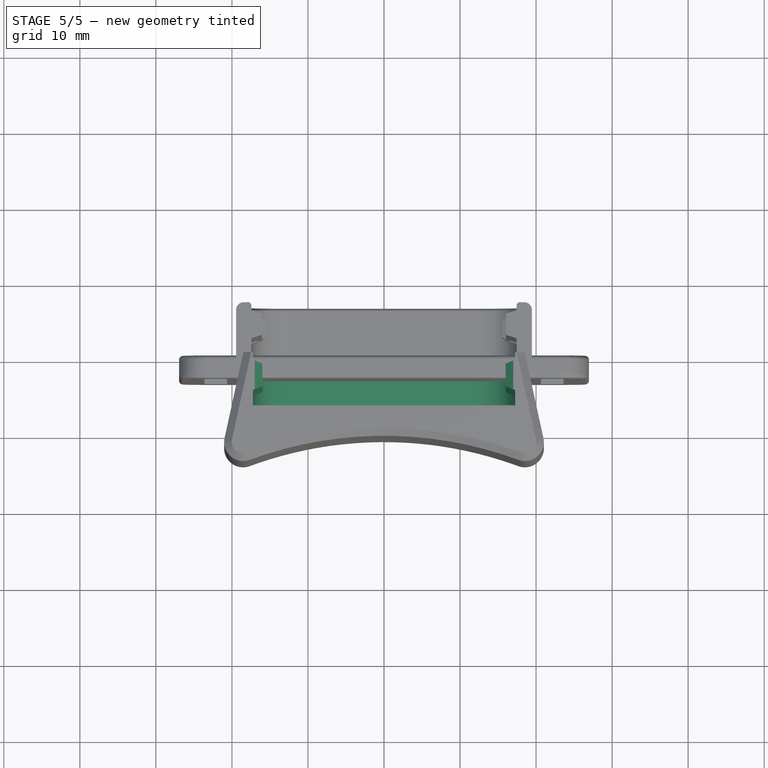
[diagram: stage 5 of 5 — top view after this stage's code; geometry added in this stage tinted green]
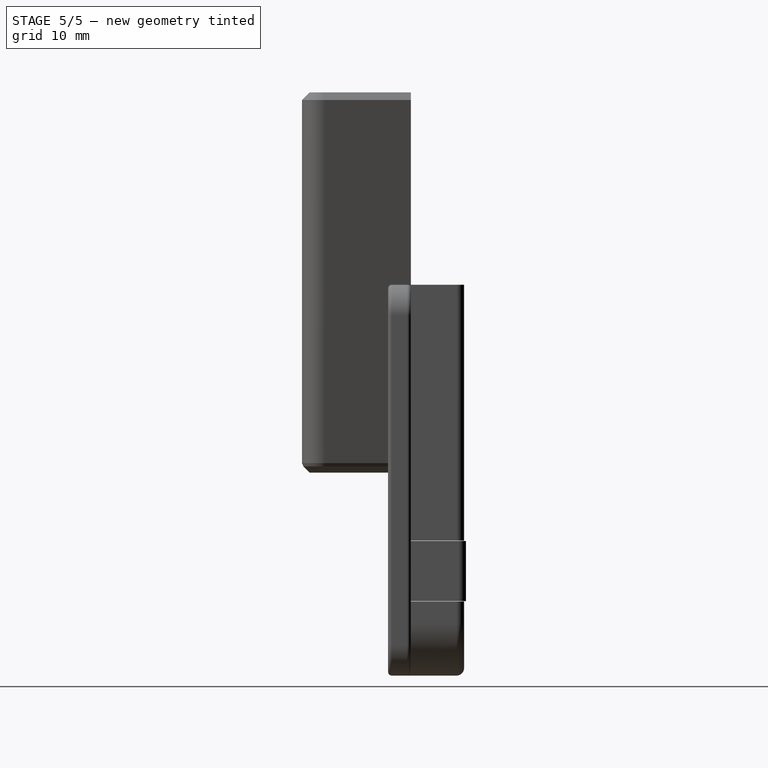
[diagram: stage 5 of 5 — right view after this stage's code; geometry added in this stage tinted green]
FEATURE [Sketcher::SketchObject] Sketch001
  ArcFitTolerance = 1e-06
  AttachmentSupport = -> [XZ_Plane]
  ExternalGeometry = -> [Chamfer]
  FullyConstrained = false
  MakeInternals = false
  MapMode = 5
  Placement = pos=(0,0,0) rot=(1,0,0;1.5708rad)
  sketch-geometry (17):
    g0: LineSegment [constr] StartX=16.75 StartY=7 StartZ=0 EndX=16.75 EndY=50 EndZ=0
    g1: LineSegment [constr] StartX=16.75 StartY=50 StartZ=0 EndX=-16.75 EndY=50 EndZ=0
    g2: LineSegment [constr] StartX=-16.75 StartY=50 StartZ=0 EndX=-16.75 EndY=7 EndZ=0
    g3: LineSegment [constr] StartX=-11.75 StartY=2 StartZ=0 EndX=11.75 EndY=2 EndZ=0
    g4: GeomPoint [constr] X=0 Y=26 Z=0
    g5: ArcOfCircle [constr] CenterX=-11.75 CenterY=7 CenterZ=0 NormalX=0 NormalY=0 NormalZ=1 AngleXU=0 Radius=5 StartAngle=3.14159 EndAngle=4.71239
    g6: GeomPoint [constr] X=-16.75 Y=2 Z=0
    g7: ArcOfCircle [constr] CenterX=11.75 CenterY=7 CenterZ=0 NormalX=0 NormalY=0 NormalZ=1 AngleXU=0 Radius=5 StartAngle=4.71239 EndAngle=6.28319
    g8: GeomPoint [constr] X=16.75 Y=2 Z=0
    g9: ArcOfCircle CenterX=11.75 CenterY=7 CenterZ=0 NormalX=0 NormalY=0 NormalZ=1 AngleXU=0 Radius=5.5 StartAngle=4.71239 EndAngle=6.28319
    g10: LineSegment StartX=17.25 StartY=7 StartZ=0 EndX=17.25 EndY=50.5 EndZ=0
    g11: LineSegment StartX=17.25 StartY=50.5 StartZ=0 EndX=-17.25 EndY=50.5 EndZ=0
    g12: LineSegment StartX=-17.25 StartY=50.5 StartZ=0 EndX=-17.25 EndY=7 EndZ=0
    g13: ArcOfCircle CenterX=-11.75 CenterY=7 CenterZ=0 NormalX=0 NormalY=0 NormalZ=1 AngleXU=0 Radius=5.5 StartAngle=3.14159 EndAngle=4.71239
    g14: LineSegment StartX=-11.75 StartY=1.5 StartZ=0 EndX=11.75 EndY=1.5 EndZ=0
    g15: LineSegment [constr] StartX=26.2014 StartY=50.5 StartZ=0 EndX=26.2014 EndY=50 EndZ=0
    g16: LineSegment [constr] StartX=-17.25 StartY=59.4514 StartZ=0 EndX=-16.75 EndY=59.4514 EndZ=0
  constraints (41):
    c: Coincident(g0,g1)
    c: Coincident(g1,g2)
    c: Vertical(g0)
    c: Vertical(g2)
    c: Horizontal(g1)
    c: Horizontal(g3)
    c: Symmetric(g2,g8,g4)
    c: PointOnObject(g4,g-2)
    c: PointOnObject(g1,g-3)
    c: PointOnObject(g6,g3)
    c: PointOnObject(g6,g2)
    c: Tangent(g3,g5) = -1.5708
    c: Tangent(g2,g5) = -1.5708
    c: PointOnObject(g8,g0)
    c: PointOnObject(g8,g3)
    c: Tangent(g0,g7) = -1.5708
    c: Tangent(g3,g7) = -1.5708
    c: Equal(g5,g7)
    c: Distance(g2,g0) = 33.5
    c: Radius(g5) = 5
    c: Distance(g1,g3) = 48
    c: Tangent(g9,g10) = -1.5708
    c: Tangent(g9,g14) = -1.5708
    c: Coincident(g10,g11)
    c: Coincident(g11,g12)
    c: Tangent(g12,g13) = -1.5708
    c: Tangent(g13,g14) = -1.5708
    c: Perpendicular(g15,g11)
    c: PointOnObject(g15,g11)
    c: PointOnObject(g15,g1)
    c: Perpendicular(g16,g12)
    c: PointOnObject(g16,g12)
    c: PointOnObject(g16,g2)
    c: Parallel(g14,g3)
    c: Coincident(g9,g7)
    c: Parallel(g10,g0)
    c: Parallel(g11,g1)
    c: Parallel(g12,g2)
    c: Equal(g16,g15)
    c: Coincident(g13,g5)
    c: Distance(g15) = 0.5
FEATURE [PartDesign::Pocket] Pocket  label="Mounting Pocket"
  BaseFeature = -> Chamfer
  Direction = (0,1,-2e-16)
  Length = 7
  Length2 = 5
  Profile = -> Sketch001
  ReferenceAxis = -> Sketch001 [N_Axis]
  Refine = true
  Reversed = true
  Suppressed = false
  Type = 0
FEATURE [PartDesign::Plane] DatumPlane  label="Opening Plane"
  AttachmentSupport = -> [Pad]
  Length = 60
  MapMode = 5
  Placement = pos=(0,0,50) rot=(0,0,1;0rad)
  ResizeMode = 0
  Width = 60
FEATURE [Sketcher::SketchObject] Sketch002
  ArcFitTolerance = 1e-06
  AttachmentSupport = -> [DatumPlane]
  ExternalGeometry = -> [Pocket]
  FullyConstrained = true
  MakeInternals = false
  MapMode = 5
  Placement = pos=(0,0,50) rot=(0,0,1;0rad)
  sketch-geometry (5):
    g0: LineSegment StartX=-17.25 StartY=-1 StartZ=0 EndX=-17.25 EndY=-5 EndZ=0
    g1: LineSegment StartX=-17.25 StartY=-5 StartZ=0 EndX=-16 EndY=-4.5 EndZ=0
    g2: LineSegment StartX=-17.25 StartY=-1 StartZ=0 EndX=-16 EndY=-1.5 EndZ=0
    g3: LineSegment StartX=-16 StartY=-1.5 StartZ=0 EndX=-16 EndY=-4.5 EndZ=0
    g4: LineSegment [constr] StartX=-15.03 StartY=-7 StartZ=0 EndX=-15.03 EndY=0 EndZ=0
  constraints (16):
    c: Coincident(g1,g0)
    c: Coincident(g2,g0)
    c: Coincident(g3,g2)
    c: Vertical(g3)
    c: Coincident(g1,g3)
    c: Equal(g2,g1)
    c: DistanceY(g0,g0) = 4
    c: Distance(g3,g3) = 3
    c: Distance(g3,g0) = 1.25
    c: PointOnObject(g4,g-4)
    c: PointOnObject(g4,g-1)
    c: Vertical(g4)
    c: Distance(g-2,g4) = 15.03
    c: PointOnObject(g0,g-3)
    c: PointOnObject(g0,g-3)
    c: Distance(g0,g-4) = 2
FEATURE [PartDesign::Pad] Pad001  label="Mounting Rail Pad"
  BaseFeature = -> Pocket
  Direction = (0,0,1)
  Length = 10
  Length2 = 10
  Profile = -> Sketch002
  ReferenceAxis = -> Sketch002 [N_Axis]
  Refine = true
  Reversed = true
  Suppressed = false
  Type = 2
FEATURE [PartDesign::Chamfer] Chamfer001  label="Tracker Base Fillet"
  Angle = 45
  Base = -> Pad001 [Edge2]
  BaseFeature = -> Pad001
  ChamferType = 0
  FlipDirection = false
  Refine = true
  Size = 0.25
  Size2 = 1
  SupportTransform = false
  Suppressed = false
  UseAllEdges = false
FEATURE [PartDesign::Chamfer] Chamfer002  label="Mounting Rail Entry Chamfer"
  Angle = 45
  Base = -> Chamfer001 [Edge46]
  BaseFeature = -> Chamfer001
  ChamferType = 0
  FlipDirection = false
  Refine = true
  Size = 1
  Size2 = 1
  SupportTransform = false
  Suppressed = false
  UseAllEdges = false
FEATURE [PartDesign::Fillet] Fillet001
  Base = -> Chamfer002 [?Edge23]
  BaseFeature = -> Chamfer002
  Radius = 0.5
  Refine = true
  SupportTransform = false
  Suppressed = true
  UseAllEdges = false
FEATURE [PartDesign::Mirrored] Mirrored  label="Mounting Rail Mirror"
  BaseFeature = -> Fillet001
  MirrorPlane = -> YZ_Plane
  Originals = -> [Pad001,Chamfer002]
  Refine = true
  Suppressed = false
  TransformMode = 0
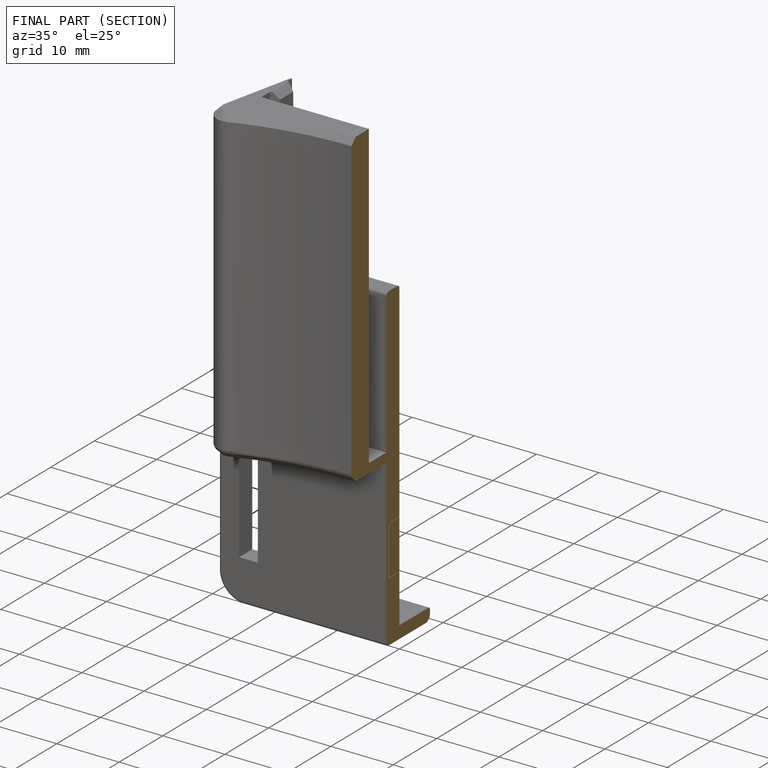
[diagram: finished part — half-section view (interior)]
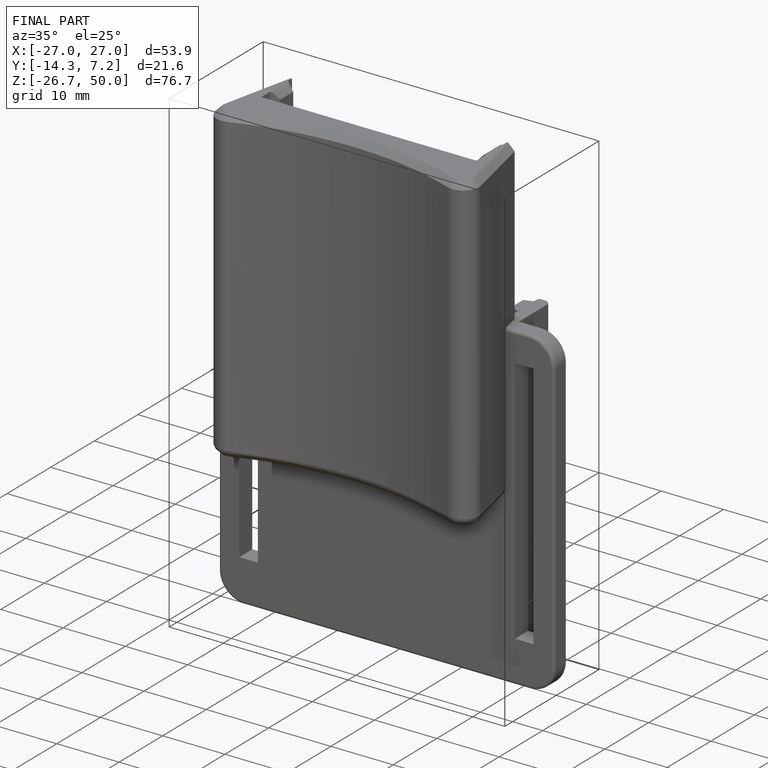
[diagram: finished part — iso view with bounding-box wireframe]
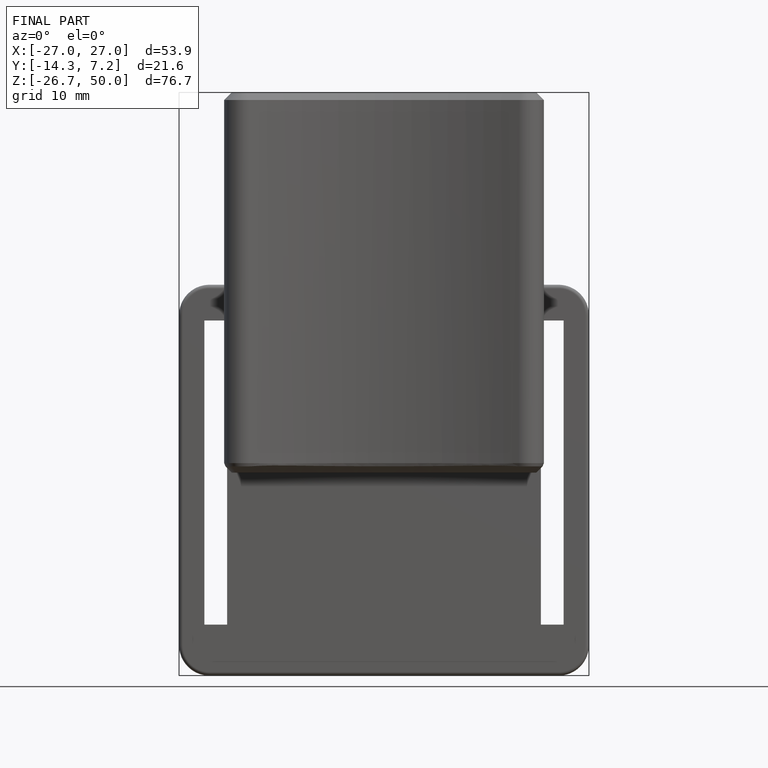
[diagram: finished part — front view with bounding-box wireframe]
